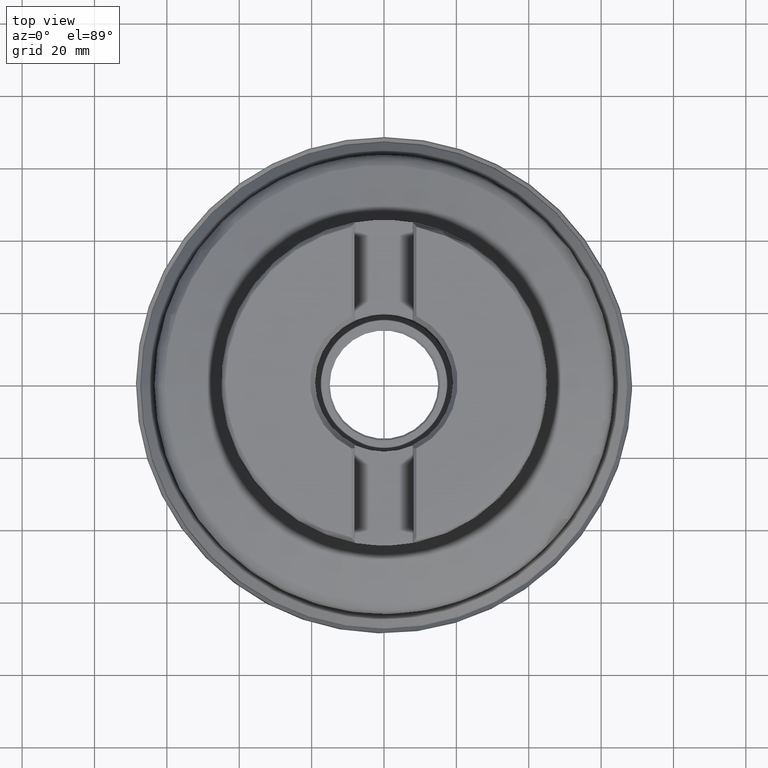
[diagram: clean part render]
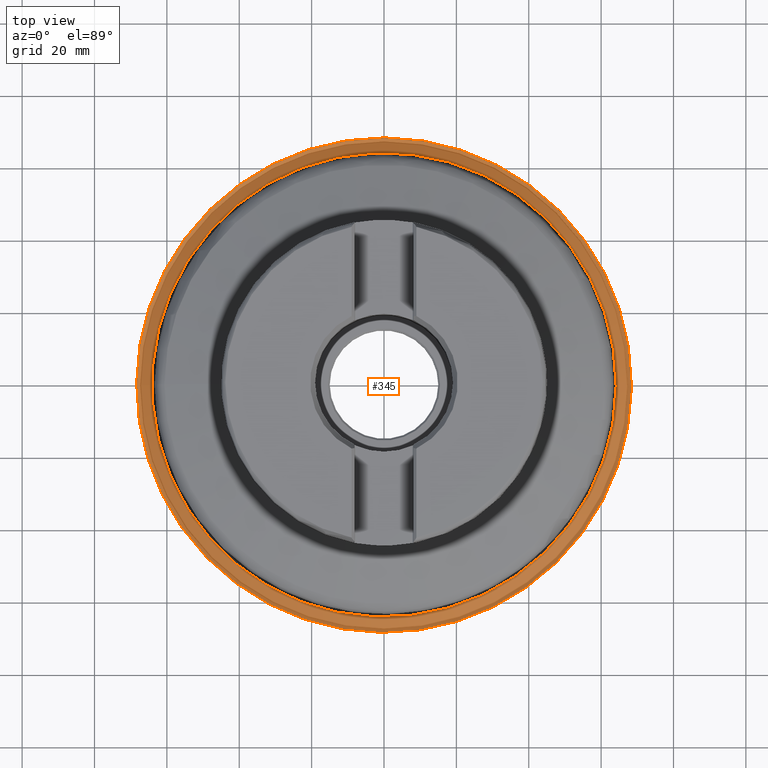
[diagram: same view with one face highlighted and labeled with its STEP entity id]
A machine part, top view. The second image highlights one B-rep face of the part: STEP entity #345.
In plain terms, the highlighted face is a SurfaceOfRevolution surface.
Its self-contained STEP definition (entity closure, byte-faithful):
#127=SURFACE_OF_REVOLUTION('',#210,#147);
#147=AXIS1_PLACEMENT('',#2216,#1482);
#210=LINE('',#2215,#242);
#242=VECTOR('',#1481,5.97815706176458);
#345=ADVANCED_FACE('',(#455,#456),#127,.F.);
#455=FACE_BOUND('',#575,.T.);
#456=FACE_BOUND('',#576,.T.);
#575=EDGE_LOOP('',(#793));
#576=EDGE_LOOP('',(#794));
#793=ORIENTED_EDGE('',*,*,#994,.T.);
#794=ORIENTED_EDGE('',*,*,#995,.F.);
#885=VERTEX_POINT('',#2207);
#886=VERTEX_POINT('',#2214);
#994=EDGE_CURVE('',#885,#885,#1050,.T.);
#995=EDGE_CURVE('',#886,#886,#1051,.T.);
#1050=CIRCLE('',#1211,64.1513568713859);
#1051=CIRCLE('',#1212,68.3318391324302);
#1211=AXIS2_PLACEMENT_3D('',#2206,#1476,#1477);
#1212=AXIS2_PLACEMENT_3D('',#2213,#1479,#1480);
#1476=DIRECTION('',(1.17145536458252E-15,0.,1.));
#1477=DIRECTION('',(1.,0.,-1.16276744725059E-15));
#1479=DIRECTION('',(1.17145536458252E-15,0.,1.));
#1480=DIRECTION('',(1.,0.,-1.16779060695677E-15));
#1481=DIRECTION('',(0.0861746391405327,0.704754822454494,0.704197821493459));
#1482=DIRECTION('',(1.17145536458252E-15,0.,1.));
#2206=CARTESIAN_POINT('',(1.8231230329283E-14,0.,15.562889445455));
#2207=CARTESIAN_POINT('',(64.1513568713859,0.,15.5628894454549));
#2213=CARTESIAN_POINT('',(1.32996313571802E-14,0.,11.3530841714314));
#2214=CARTESIAN_POINT('',(68.3318391324302,0.,11.3530841714313));
#2215=CARTESIAN_POINT('',(3.1959402393257,-68.2570596519016,11.3530842660146));
#2216=CARTESIAN_POINT('',(0.,0.,0.));